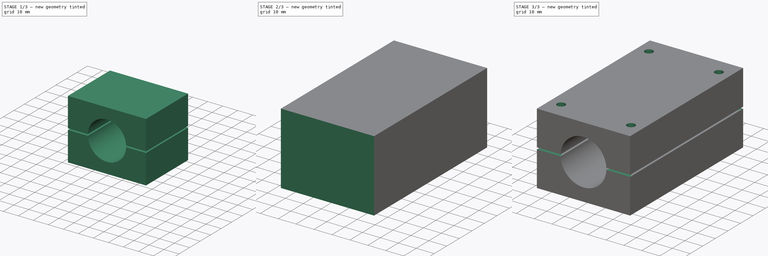
[diagram: build sequence overview — one tinted view per stage of 3, left to right]
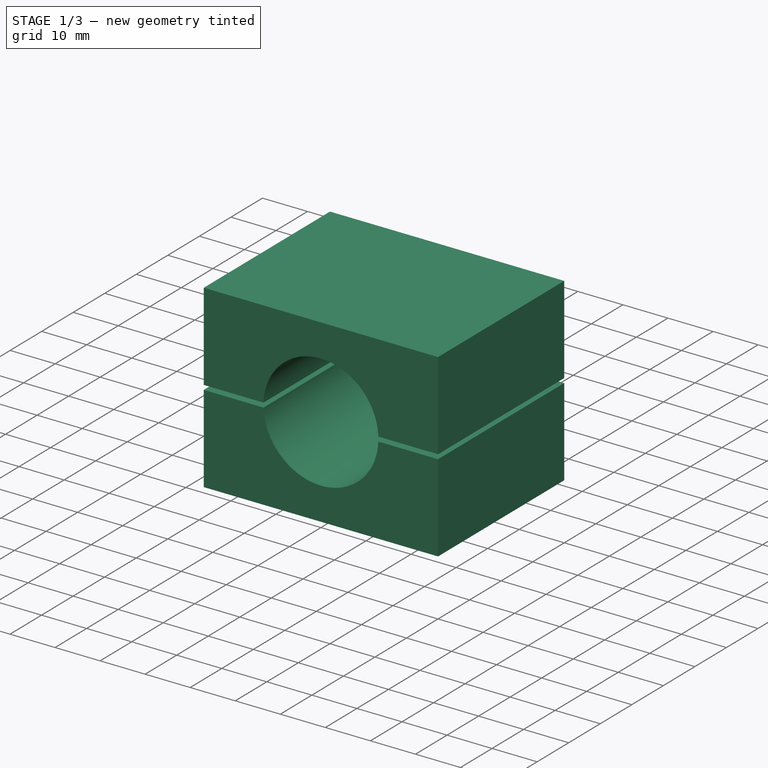
[diagram: stage 1 of 3 — iso view after this stage's code; geometry added in this stage tinted green]
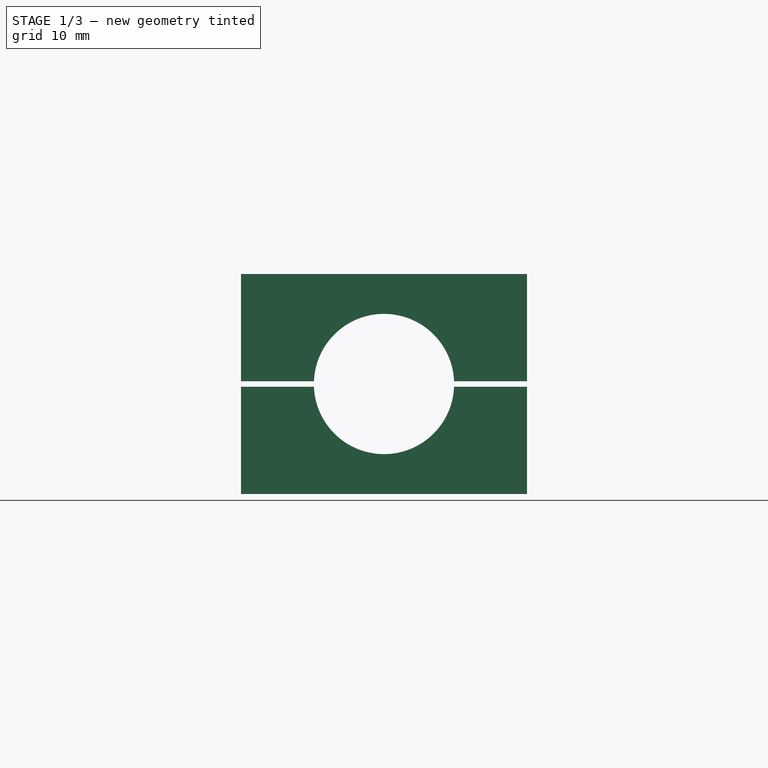
[diagram: stage 1 of 3 — front view after this stage's code; geometry added in this stage tinted green]
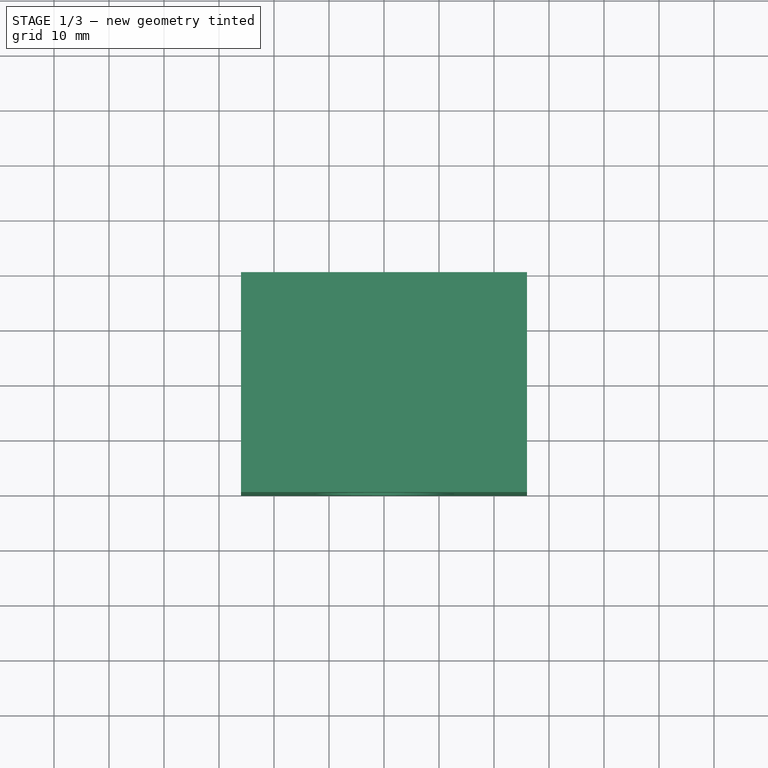
[diagram: stage 1 of 3 — top view after this stage's code; geometry added in this stage tinted green]
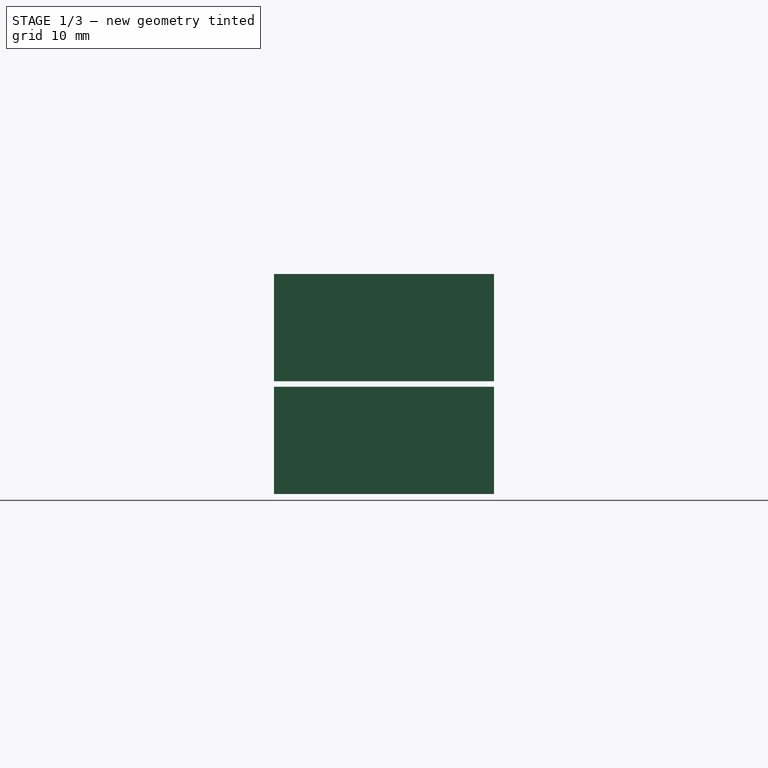
[diagram: stage 1 of 3 — right view after this stage's code; geometry added in this stage tinted green]
FCSTD DOCUMENT  (FreeCAD 2021.1015R24301 +3962 (Git))
Label: pipe holder
License: All rights reserved
LicenseURL: http://en.wikipedia.org/wiki/All_rights_reserved
objects: Sketcher::SketchObject×8, PartDesign::Pocket×6, PartDesign::Pad×2, PartDesign::Body×2
note: 34 computed .brp shape members not serialized (recipe doc carries the construction recipe); baked Part::Feature solids carry a one-line shape summary decoded from their .brp

FEATURE [PartDesign::Body] Body
  AutoGroupSolids = false
  ExportMode = 0
  Group = -> [Sketch,Pad,Sketch001,Pocket,Sketch002,Pocket001,Sketch003,Pocket002]
  Origin = -> Origin
  Tip = -> Pocket002
  _ExportChildren = -> [Pad,Pocket,Pocket001,Pocket002]
  _GroupVersion = 1
FEATURE [Sketcher::SketchObject] Sketch004
  FullyConstrained = true
  MapMode = 5
  Support = -> [XY_Plane001]
  sketch-geometry (4):
    g0: LineSegment StartX=-26 StartY=20 StartZ=0 EndX=26 EndY=20 EndZ=0
    g1: LineSegment StartX=26 StartY=20 StartZ=0 EndX=26 EndY=-20 EndZ=0
    g2: LineSegment StartX=26 StartY=-20 StartZ=0 EndX=-26 EndY=-20 EndZ=0
    g3: LineSegment StartX=-26 StartY=-20 StartZ=0 EndX=-26 EndY=20 EndZ=0
  constraints (11):
    c: Coincident(g0,g1)
    c: Coincident(g1,g2)
    c: Coincident(g2,g3)
    c: Coincident(g3,g0)
    c: Horizontal(g0)
    c: Horizontal(g2)
    c: Vertical(g1)
    c: Vertical(g3)
    c: Symmetric(g1,g0,g-1)
    c: DistanceX(g0,g0) = 52
    c: DistanceY(g1,g1) = 40
FEATURE [PartDesign::Pad] Pad001
  ClaimChildren = false
  Direction = (1,1,1)
  Fit = 0
  FitJoin = 0
  InnerFit = 0
  InnerFitJoin = 0
  InnerTaperAngle = 0
  InnerTaperAngleRev = 0
  Length = 40
  Length2 = 100
  Linearize = true
  NewSolid = false
  Profile = -> Sketch004
  Refine = true
  Suppress = false
  Type = 0
  _ProfileBasedVersion = 1
FEATURE [Sketcher::SketchObject] Sketch005
  FullyConstrained = true
  MapMode = 5
  Placement = pos=(0,0,0) rot=(1,0,0;1.5708rad)
  Support = -> [XZ_Plane001]
  sketch-geometry (1):
    g0: Circle CenterX=0 CenterY=20 CenterZ=0 NormalX=0 NormalY=0 NormalZ=1 AngleXU=0 Radius=12.75
  constraints (3):
    c: PointOnObject(g0,g-2)
    c: DistanceY(g0) = 20
    c: Diameter(g0) = 25.5
FEATURE [PartDesign::Pocket] Pocket003
  BaseFeature = -> Pad001
  ClaimChildren = false
  Fit = 0
  FitJoin = 0
  InnerFit = 0
  InnerFitJoin = 0
  InnerTaperAngle = 0
  InnerTaperAngleRev = 0
  Length = 5
  Length2 = 100
  Linearize = true
  Midplane = true
  NewSolid = false
  Profile = -> Sketch005
  Refine = true
  Suppress = false
  Type = 1
  _ProfileBasedVersion = 1
FEATURE [Sketcher::SketchObject] Sketch006
  FullyConstrained = true
  MapMode = 5
  Placement = pos=(0,0,0) rot=(1,0,0;1.5708rad)
  Support = -> [XZ_Plane001]
  sketch-geometry (5):
    g0: LineSegment StartX=-30 StartY=20.5 StartZ=0 EndX=30 EndY=20.5 EndZ=0
    g1: LineSegment StartX=30 StartY=20.5 StartZ=0 EndX=30 EndY=19.5 EndZ=0
    g2: LineSegment StartX=30 StartY=19.5 StartZ=0 EndX=-30 EndY=19.5 EndZ=0
    g3: LineSegment StartX=-30 StartY=19.5 StartZ=0 EndX=-30 EndY=20.5 EndZ=0
    g4: LineSegment [constr] StartX=-30 StartY=20 StartZ=0 EndX=30 EndY=20 EndZ=0
  constraints (13):
    c: Coincident(g0,g1)
    c: Coincident(g1,g2)
    c: Coincident(g2,g3)
    c: Coincident(g3,g0)
    c: Horizontal(g0)
    c: Vertical(g1)
    c: Vertical(g3)
    c: DistanceY(g4) = 20
    c: Symmetric(g0,g1,g4)
    c: Symmetric(g2,g0,g4)
    c: DistanceY(g3,g3) = 1
    c: Symmetric(g4,g4,g-2)
    c: DistanceX(g4,g4) = 60
FEATURE [PartDesign::Pocket] Pocket004
  BaseFeature = -> Pocket003
  ClaimChildren = false
  Fit = 0
  FitJoin = 0
  InnerFit = 0
  InnerFitJoin = 0
  InnerTaperAngle = 0
  InnerTaperAngleRev = 0
  Length = 5
  Length2 = 100
  Linearize = true
  Midplane = true
  NewSolid = false
  Profile = -> Sketch006
  Refine = true
  Suppress = false
  Type = 1
  _ProfileBasedVersion = 1
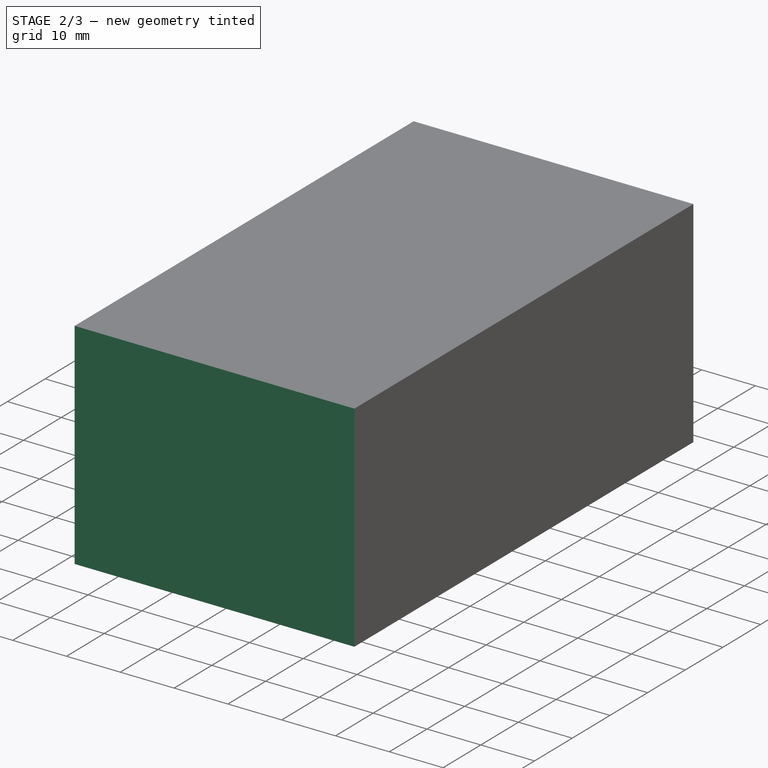
[diagram: stage 2 of 3 — iso view after this stage's code; geometry added in this stage tinted green]
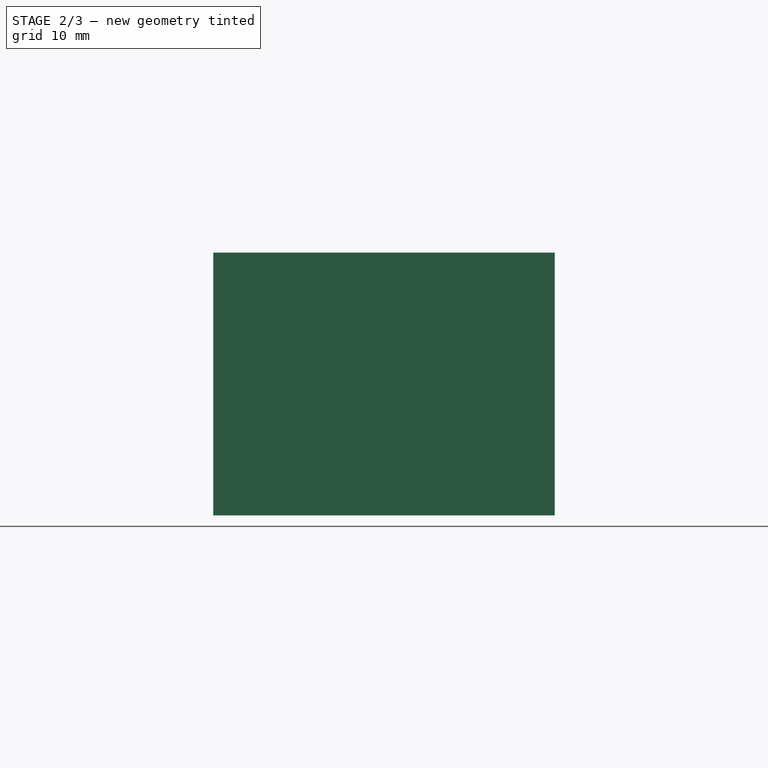
[diagram: stage 2 of 3 — front view after this stage's code; geometry added in this stage tinted green]
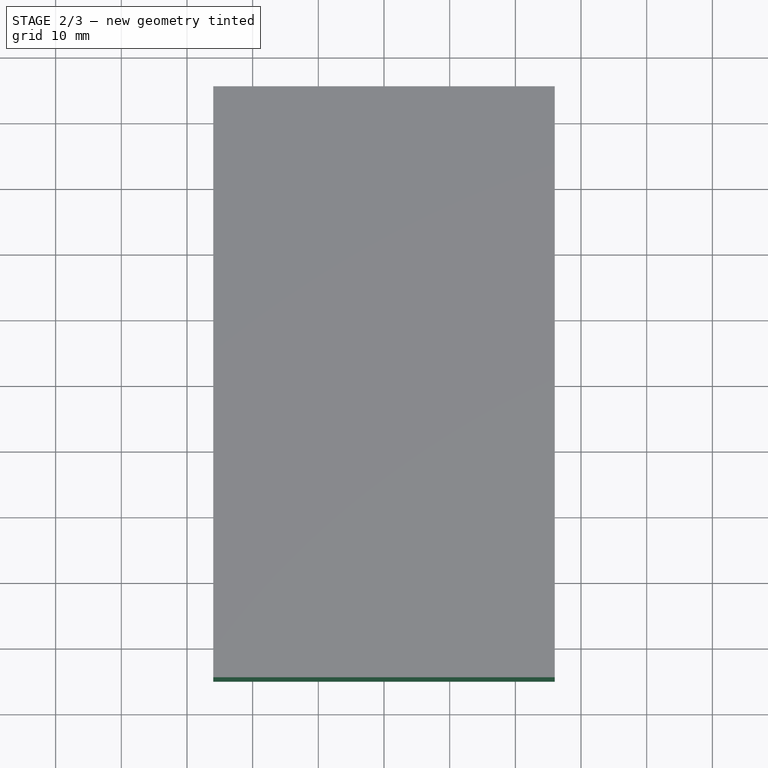
[diagram: stage 2 of 3 — top view after this stage's code; geometry added in this stage tinted green]
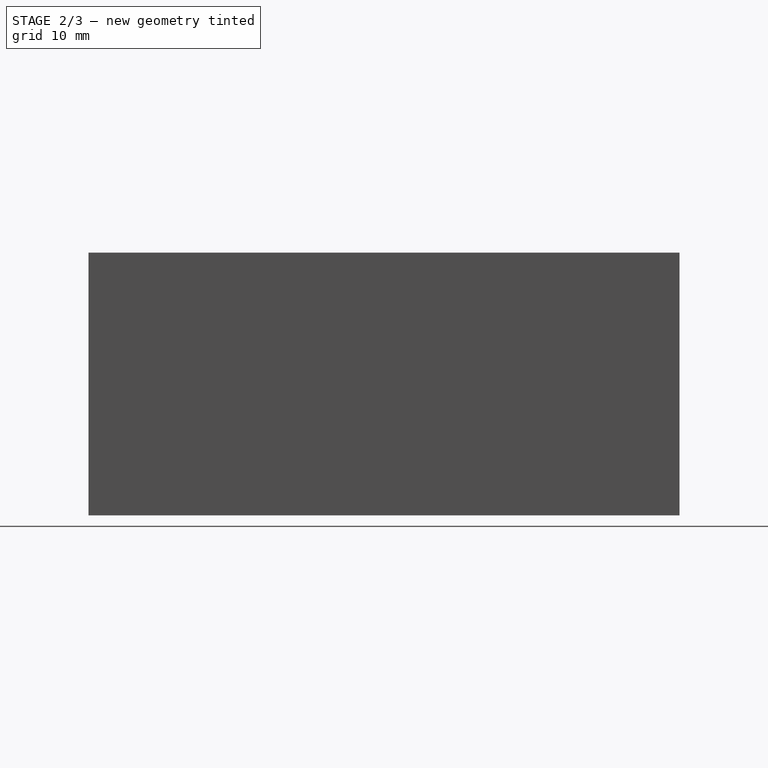
[diagram: stage 2 of 3 — right view after this stage's code; geometry added in this stage tinted green]
FEATURE [Sketcher::SketchObject] Sketch
  FullyConstrained = true
  MapMode = 5
  Support = -> [XY_Plane]
  sketch-geometry (4):
    g0: LineSegment StartX=-26 StartY=45 StartZ=0 EndX=26 EndY=45 EndZ=0
    g1: LineSegment StartX=26 StartY=45 StartZ=0 EndX=26 EndY=-45 EndZ=0
    g2: LineSegment StartX=26 StartY=-45 StartZ=0 EndX=-26 EndY=-45 EndZ=0
    g3: LineSegment StartX=-26 StartY=-45 StartZ=0 EndX=-26 EndY=45 EndZ=0
  constraints (11):
    c: Coincident(g0,g1)
    c: Coincident(g1,g2)
    c: Coincident(g2,g3)
    c: Coincident(g3,g0)
    c: Horizontal(g0)
    c: Horizontal(g2)
    c: Vertical(g1)
    c: Vertical(g3)
    c: Symmetric(g1,g0,g-1)
    c: DistanceX(g0,g0) = 52
    c: DistanceY(g1,g1) = 90
FEATURE [PartDesign::Pad] Pad
  ClaimChildren = false
  Direction = (1,1,1)
  Fit = 0
  FitJoin = 0
  InnerFit = 0
  InnerFitJoin = 0
  InnerTaperAngle = 0
  InnerTaperAngleRev = 0
  Length = 40
  Length2 = 100
  Linearize = true
  NewSolid = false
  Profile = -> Sketch
  Refine = true
  Suppress = false
  Type = 0
  _ProfileBasedVersion = 1
FEATURE [Sketcher::SketchObject] Sketch007
  FullyConstrained = false
  MapMode = 5
  Support = -> [XY_Plane001]
  sketch-geometry (3):
    g0: LineSegment [constr] StartX=-19.5 StartY=0 StartZ=0 EndX=19.5 EndY=0 EndZ=0
    g1: Circle CenterX=-19.5 CenterY=0 CenterZ=0 NormalX=0 NormalY=0 NormalZ=1 AngleXU=0 Radius=2.25
    g2: Circle CenterX=19.5 CenterY=0 CenterZ=0 NormalX=0 NormalY=0 NormalZ=1 AngleXU=0 Radius=2.25
  constraints (4):
    c: Horizontal(g0)
    c: Coincident(g1,g0)
    c: Coincident(g2,g0)
    c: Symmetric(g1,g2,g-1)
FEATURE [PartDesign::Pocket] Pocket005
  BaseFeature = -> Pocket004
  ClaimChildren = false
  Fit = 0
  FitJoin = 0
  InnerFit = 0
  InnerFitJoin = 0
  InnerTaperAngle = 0
  InnerTaperAngleRev = 0
  Length = 5
  Length2 = 100
  Linearize = true
  Midplane = true
  NewSolid = false
  Profile = -> Sketch007
  Refine = true
  Suppress = false
  Type = 1
  _ProfileBasedVersion = 1
FEATURE [PartDesign::Body] Body001
  AutoGroupSolids = false
  ExportMode = 0
  Group = -> [Sketch004,Pad001,Sketch005,Pocket003,Sketch006,Pocket004,Sketch007,Pocket005]
  Origin = -> Origin001
  Tip = -> Pocket005
  _ExportChildren = -> [Pad001,Pocket003,Pocket004,Pocket005]
  _GroupVersion = 1
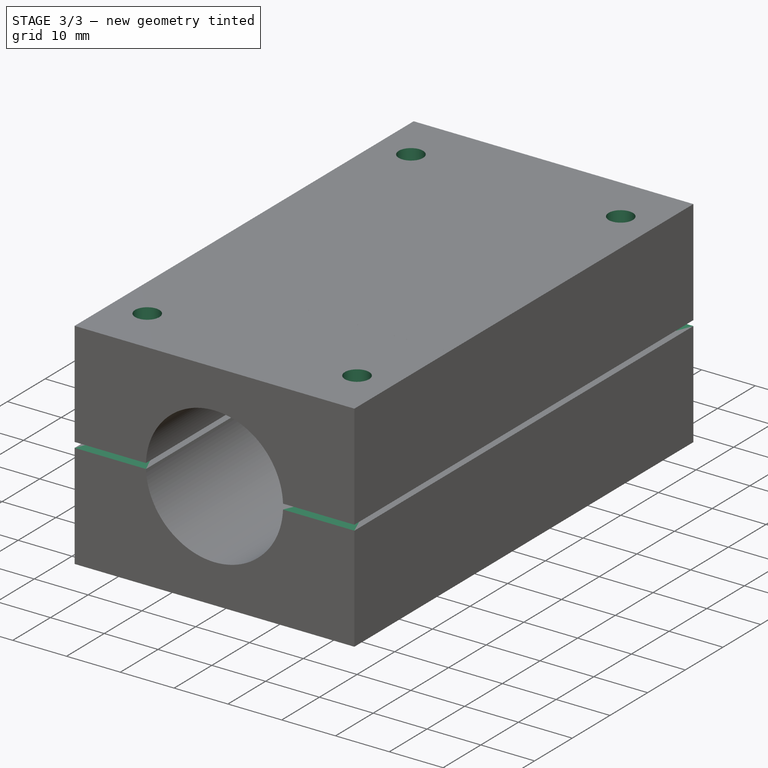
[diagram: stage 3 of 3 — iso view after this stage's code; geometry added in this stage tinted green]
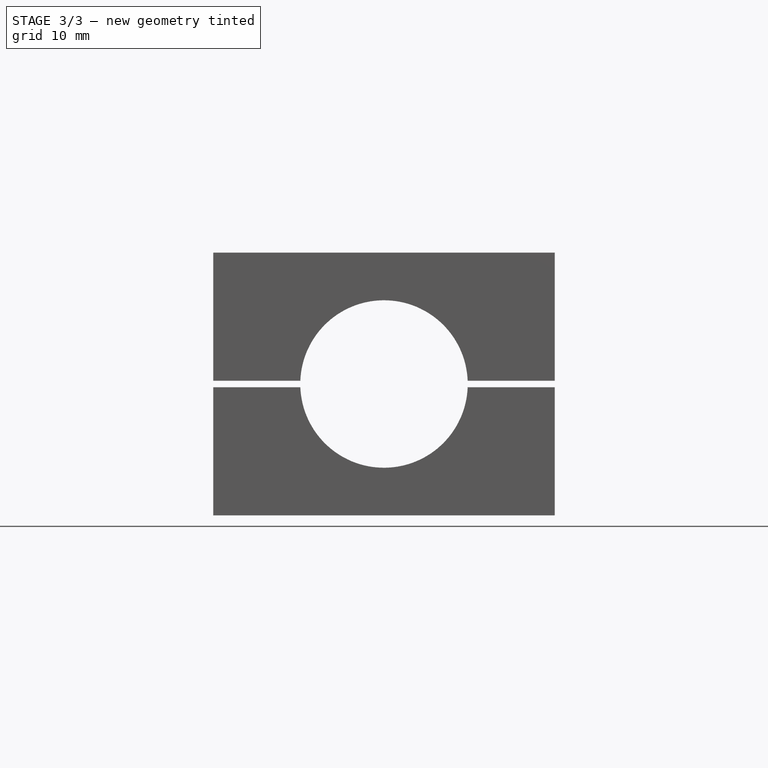
[diagram: stage 3 of 3 — front view after this stage's code; geometry added in this stage tinted green]
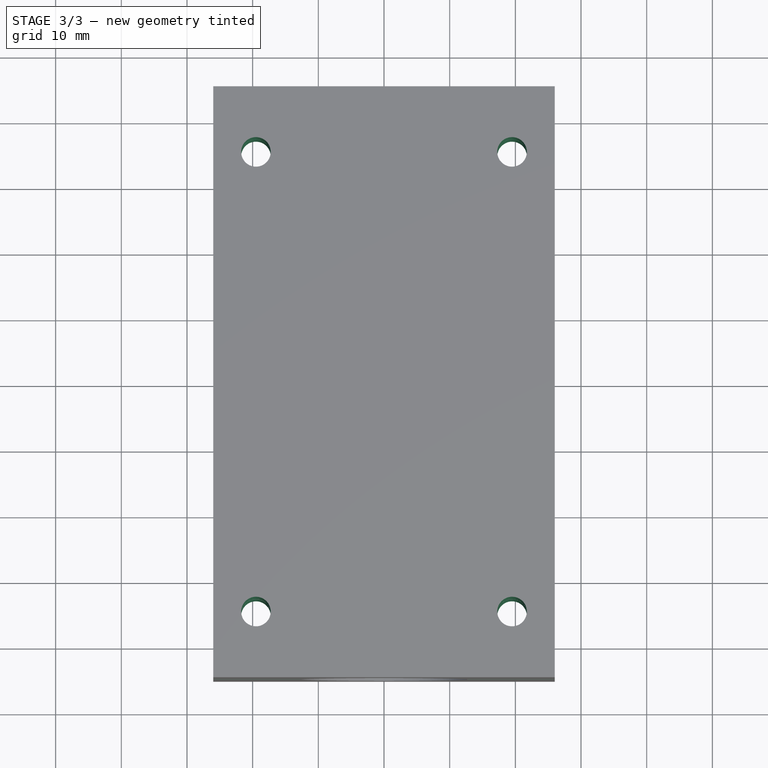
[diagram: stage 3 of 3 — top view after this stage's code; geometry added in this stage tinted green]
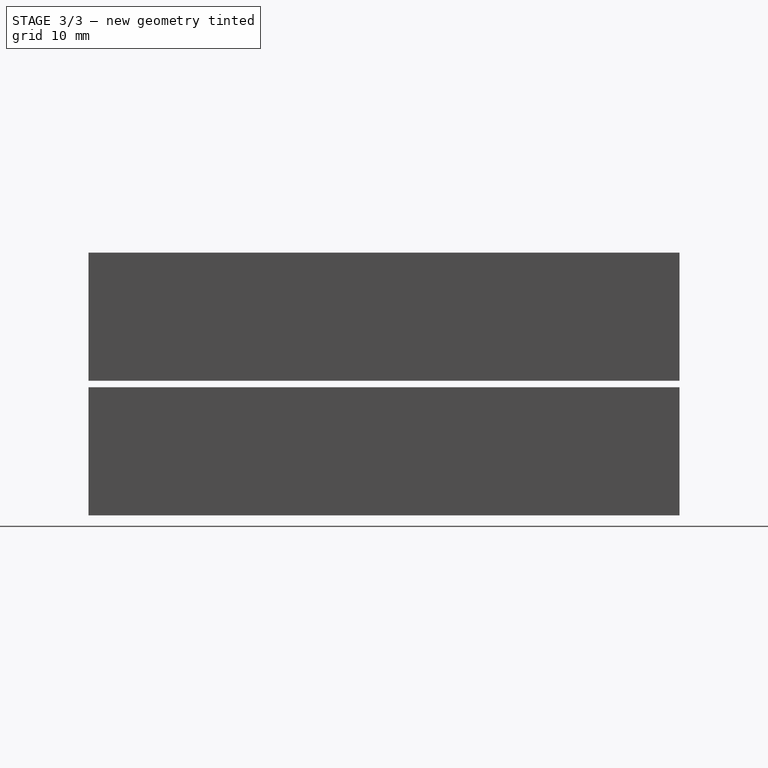
[diagram: stage 3 of 3 — right view after this stage's code; geometry added in this stage tinted green]
FEATURE [Sketcher::SketchObject] Sketch001
  FullyConstrained = true
  MapMode = 5
  Placement = pos=(0,0,0) rot=(1,0,0;1.5708rad)
  Support = -> [XZ_Plane]
  sketch-geometry (1):
    g0: Circle CenterX=0 CenterY=20 CenterZ=0 NormalX=0 NormalY=0 NormalZ=1 AngleXU=0 Radius=12.75
  constraints (3):
    c: PointOnObject(g0,g-2)
    c: DistanceY(g0) = 20
    c: Diameter(g0) = 25.5
FEATURE [PartDesign::Pocket] Pocket
  BaseFeature = -> Pad
  ClaimChildren = false
  Fit = 0
  FitJoin = 0
  InnerFit = 0
  InnerFitJoin = 0
  InnerTaperAngle = 0
  InnerTaperAngleRev = 0
  Length = 5
  Length2 = 100
  Linearize = true
  Midplane = true
  NewSolid = false
  Profile = -> Sketch001
  Refine = true
  Suppress = false
  Type = 1
  _ProfileBasedVersion = 1
FEATURE [Sketcher::SketchObject] Sketch002
  FullyConstrained = true
  MapMode = 5
  Placement = pos=(0,0,0) rot=(1,0,0;1.5708rad)
  Support = -> [XZ_Plane]
  sketch-geometry (5):
    g0: LineSegment StartX=-30 StartY=20.5 StartZ=0 EndX=30 EndY=20.5 EndZ=0
    g1: LineSegment StartX=30 StartY=20.5 StartZ=0 EndX=30 EndY=19.5 EndZ=0
    g2: LineSegment StartX=30 StartY=19.5 StartZ=0 EndX=-30 EndY=19.5 EndZ=0
    g3: LineSegment StartX=-30 StartY=19.5 StartZ=0 EndX=-30 EndY=20.5 EndZ=0
    g4: LineSegment [constr] StartX=-30 StartY=20 StartZ=0 EndX=30 EndY=20 EndZ=0
  constraints (13):
    c: Coincident(g0,g1)
    c: Coincident(g1,g2)
    c: Coincident(g2,g3)
    c: Coincident(g3,g0)
    c: Horizontal(g0)
    c: Vertical(g1)
    c: Vertical(g3)
    c: DistanceY(g4) = 20
    c: Symmetric(g0,g1,g4)
    c: Symmetric(g2,g0,g4)
    c: DistanceY(g3,g3) = 1
    c: Symmetric(g4,g4,g-2)
    c: DistanceX(g4,g4) = 60
FEATURE [PartDesign::Pocket] Pocket001
  BaseFeature = -> Pocket
  ClaimChildren = false
  Fit = 0
  FitJoin = 0
  InnerFit = 0
  InnerFitJoin = 0
  InnerTaperAngle = 0
  InnerTaperAngleRev = 0
  Length = 5
  Length2 = 100
  Linearize = true
  Midplane = true
  NewSolid = false
  Profile = -> Sketch002
  Refine = true
  Suppress = false
  Type = 1
  _ProfileBasedVersion = 1
FEATURE [Sketcher::SketchObject] Sketch003
  FullyConstrained = true
  MapMode = 5
  Support = -> [XY_Plane]
  expr: Constraints[9] = 52 - 13
  sketch-geometry (8):
    g0: LineSegment [constr] StartX=-19.5 StartY=35 StartZ=0 EndX=19.5 EndY=35 EndZ=0
    g1: LineSegment [constr] StartX=19.5 StartY=35 StartZ=0 EndX=19.5 EndY=-35 EndZ=0
    g2: LineSegment [constr] StartX=19.5 StartY=-35 StartZ=0 EndX=-19.5 EndY=-35 EndZ=0
    g3: LineSegment [constr] StartX=-19.5 StartY=-35 StartZ=0 EndX=-19.5 EndY=35 EndZ=0
    g4: Circle CenterX=-19.5 CenterY=35 CenterZ=0 NormalX=0 NormalY=0 NormalZ=1 AngleXU=0 Radius=2.25
    g5: Circle CenterX=19.5 CenterY=35 CenterZ=0 NormalX=0 NormalY=0 NormalZ=1 AngleXU=0 Radius=2.25
    g6: Circle CenterX=19.5 CenterY=-35 CenterZ=0 NormalX=0 NormalY=0 NormalZ=1 AngleXU=0 Radius=2.25
    g7: Circle CenterX=-19.5 CenterY=-35 CenterZ=0 NormalX=0 NormalY=0 NormalZ=1 AngleXU=0 Radius=2.25
  constraints (19):
    c: Coincident(g0,g1)
    c: Coincident(g1,g2)
    c: Coincident(g2,g3)
    c: Coincident(g3,g0)
    c: Horizontal(g0)
    c: Horizontal(g2)
    c: Vertical(g1)
    c: Vertical(g3)
    c: Symmetric(g1,g0,g-1)
    c: DistanceX(g2,g2) = 39
    c: DistanceY(g1,g1) = 70
    c: Coincident(g4,g0)
    c: Coincident(g5,g0)
    c: Coincident(g6,g1)
    c: Coincident(g7,g2)
    c: Diameter(g6) = 4.5
    c: Equal(g6,g7)
    c: Equal(g6,g4)
    c: Equal(g6,g5)
FEATURE [PartDesign::Pocket] Pocket002
  BaseFeature = -> Pocket001
  ClaimChildren = false
  Fit = 0
  FitJoin = 0
  InnerFit = 0
  InnerFitJoin = 0
  InnerTaperAngle = 0
  InnerTaperAngleRev = 0
  Length = 5
  Length2 = 100
  Linearize = true
  Midplane = true
  NewSolid = false
  Profile = -> Sketch003
  Refine = true
  Suppress = false
  Type = 1
  _ProfileBasedVersion = 1
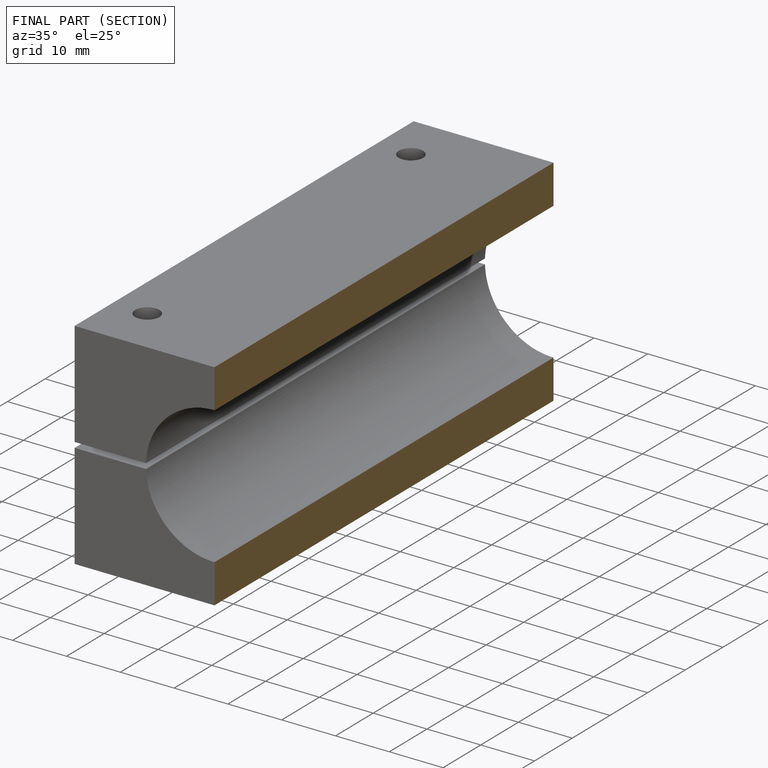
[diagram: finished part — half-section view (interior)]
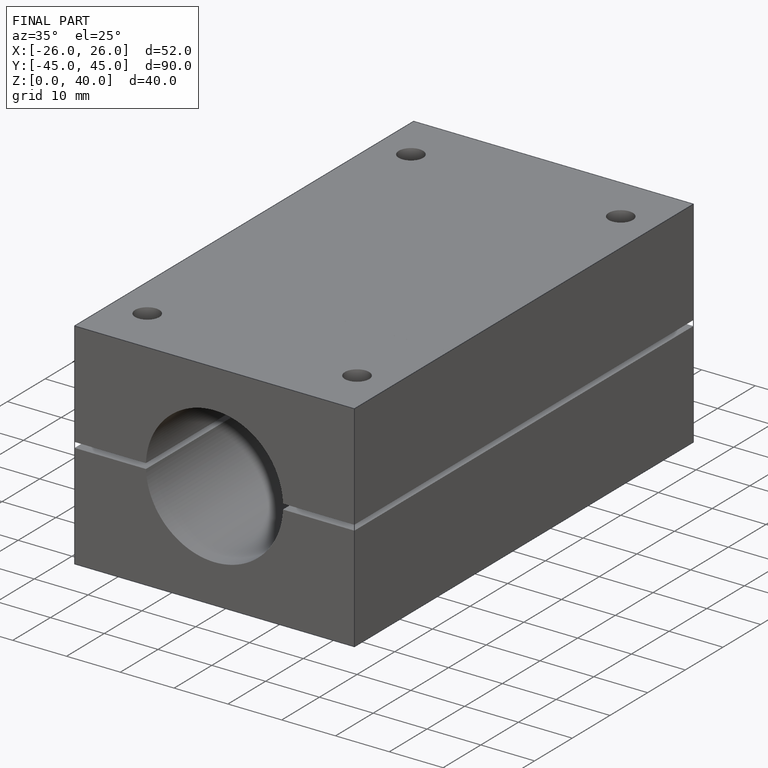
[diagram: finished part — iso view with bounding-box wireframe]
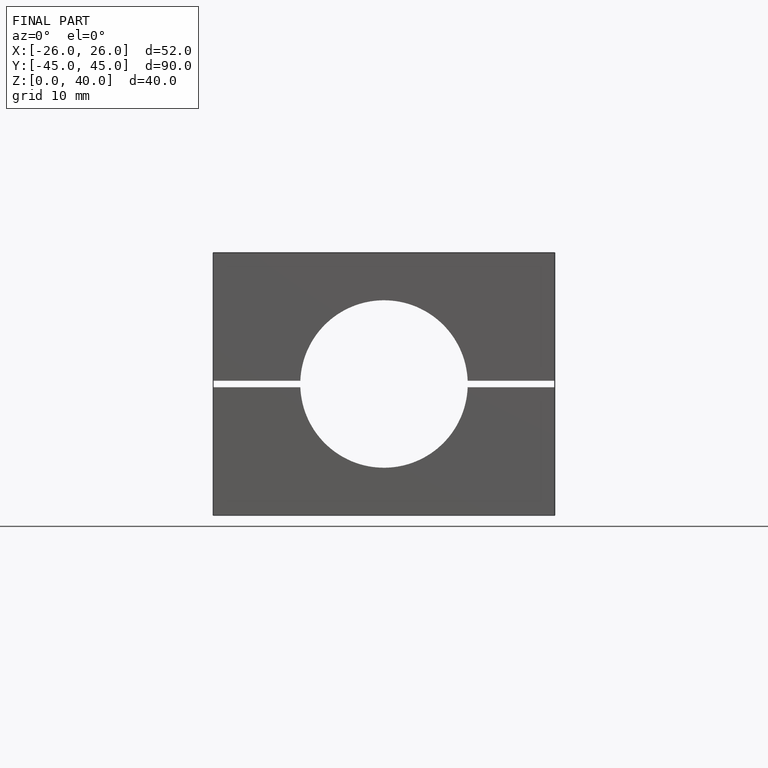
[diagram: finished part — front view with bounding-box wireframe]
